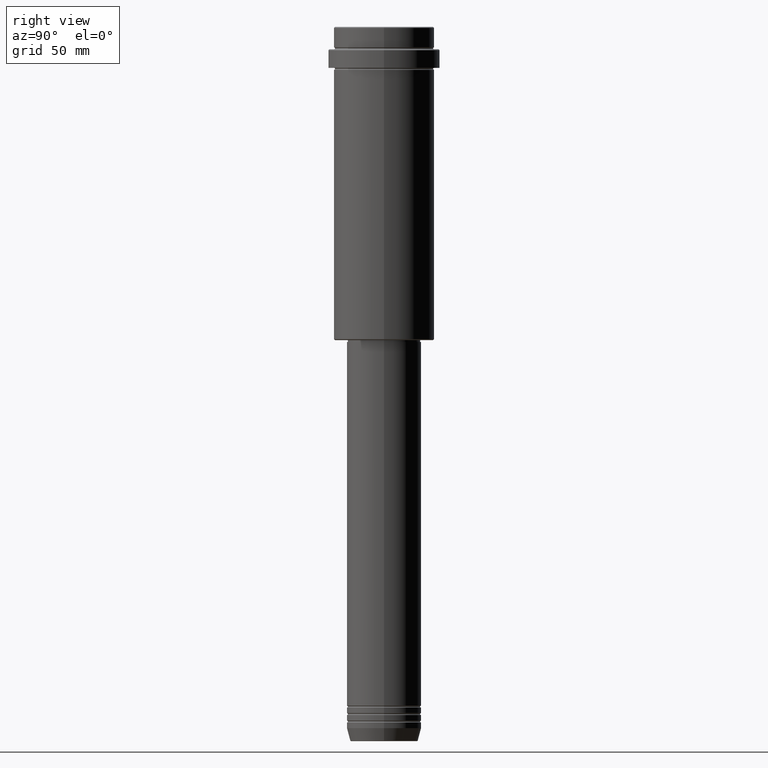
[diagram: clean part render]
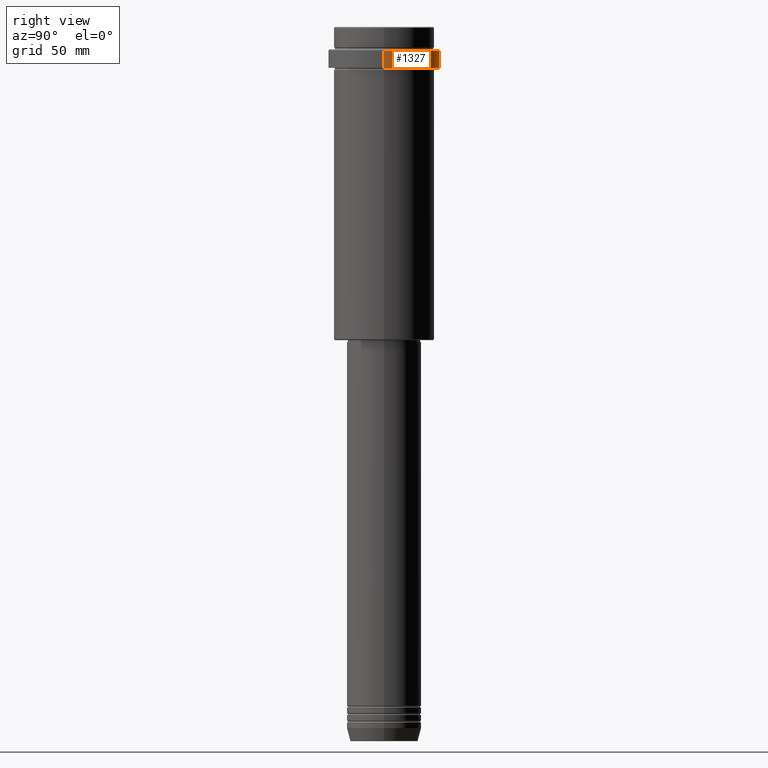
[diagram: same view with one face highlighted and labeled with its STEP entity id]
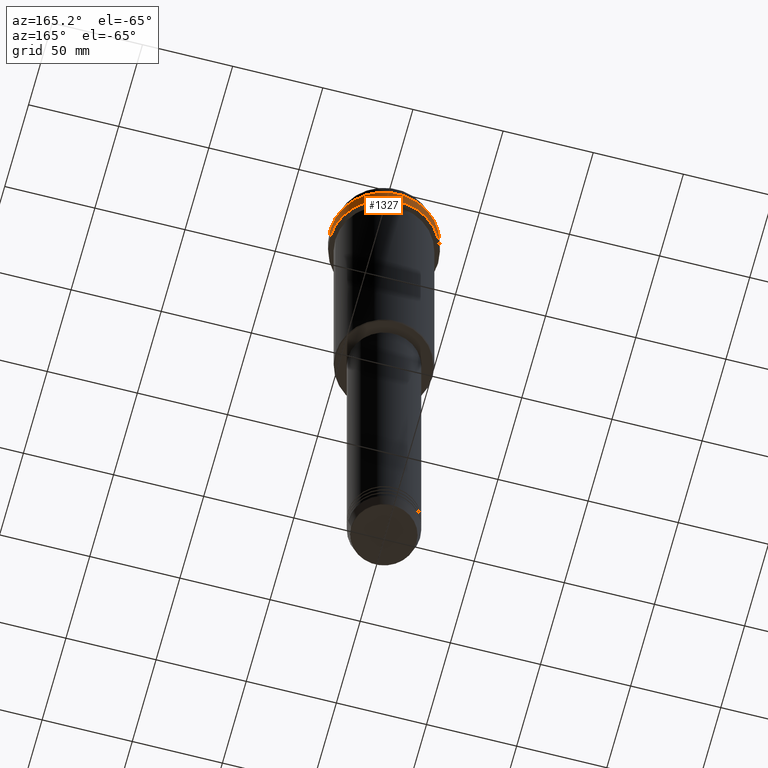
[diagram: same view with one face highlighted and labeled with its STEP entity id]
A machine part, right view. The second image highlights one B-rep face of the part: STEP entity #1327.
A second angle (auxiliary view) of the same face is appended — the face is thin or edge-on in the first view.
In plain terms, the highlighted cylindrical surface (partial cylindrical patch) has radius 30 mm, axis along (-0, -0, 1).
Its self-contained STEP definition (entity closure, byte-faithful):
#56 = ORIENTED_EDGE ( 'NONE', *, *, #1051, .T. ) ;
#64 = CIRCLE ( 'NONE', #1237, 30.00000000000000000 ) ;
#72 = VERTEX_POINT ( 'NONE', #919 ) ;
#102 = CARTESIAN_POINT ( 'NONE',  ( 0.000000000000000000, 0.000000000000000000, 0.000000000000000000 ) ) ;
#140 = DIRECTION ( 'NONE',  ( 1.000000000000000000, 0.000000000000000000, 0.000000000000000000 ) ) ;
#165 = CARTESIAN_POINT ( 'NONE',  ( 30.00000000000000000, 0.000000000000000000, -12.50000000000006573 ) ) ;
#173 = DIRECTION ( 'NONE',  ( -0.000000000000000000, -0.000000000000000000, 1.000000000000000000 ) ) ;
#199 = LINE ( 'NONE', #400, #462 ) ;
#233 = EDGE_CURVE ( 'NONE', #585, #739, #199, .T. ) ;
#234 = DIRECTION ( 'NONE',  ( -0.000000000000000000, -0.000000000000000000, 1.000000000000000000 ) ) ;
#322 = CARTESIAN_POINT ( 'NONE',  ( -29.99999999999999645, 3.673940397442058389E-15, -22.00000000000000355 ) ) ;
#331 = ORIENTED_EDGE ( 'NONE', *, *, #233, .F. ) ;
#400 = CARTESIAN_POINT ( 'NONE',  ( 30.00000000000000000, 0.000000000000000000, 0.000000000000000000 ) ) ;
#418 = ORIENTED_EDGE ( 'NONE', *, *, #788, .T. ) ;
#462 = VECTOR ( 'NONE', #173, 1000.000000000000000 ) ;
#524 = ORIENTED_EDGE ( 'NONE', *, *, #1352, .T. ) ;
#539 = CARTESIAN_POINT ( 'NONE',  ( 0.000000000000000000, 0.000000000000000000, -12.50000000000006573 ) ) ;
#585 = VERTEX_POINT ( 'NONE', #1139 ) ;
#601 = DIRECTION ( 'NONE',  ( -0.000000000000000000, -0.000000000000000000, 1.000000000000000000 ) ) ;
#610 = LINE ( 'NONE', #956, #1234 ) ;
#739 = VERTEX_POINT ( 'NONE', #165 ) ;
#783 = CARTESIAN_POINT ( 'NONE',  ( 0.000000000000000000, 0.000000000000000000, -22.00000000000000355 ) ) ;
#788 = EDGE_CURVE ( 'NONE', #1328, #72, #610, .T. ) ;
#802 = AXIS2_PLACEMENT_3D ( 'NONE', #102, #234, #1288 ) ;
#873 = DIRECTION ( 'NONE',  ( 1.000000000000000000, 0.000000000000000000, 0.000000000000000000 ) ) ;
#919 = CARTESIAN_POINT ( 'NONE',  ( -30.00000000000000000, 3.673940397442059178E-15, -12.50000000000006573 ) ) ;
#956 = CARTESIAN_POINT ( 'NONE',  ( -30.00000000000000000, 3.673940397442059178E-15, 0.000000000000000000 ) ) ;
#1051 = EDGE_CURVE ( 'NONE', #585, #1328, #1168, .T. ) ;
#1085 = FACE_OUTER_BOUND ( 'NONE', #1387, .T. ) ;
#1139 = CARTESIAN_POINT ( 'NONE',  ( 29.99999999999999645, 0.000000000000000000, -22.00000000000000355 ) ) ;
#1168 = CIRCLE ( 'NONE', #1316, 29.99999999999999645 ) ;
#1234 = VECTOR ( 'NONE', #1270, 1000.000000000000000 ) ;
#1237 = AXIS2_PLACEMENT_3D ( 'NONE', #539, #1394, #873 ) ;
#1270 = DIRECTION ( 'NONE',  ( -0.000000000000000000, -0.000000000000000000, 1.000000000000000000 ) ) ;
#1288 = DIRECTION ( 'NONE',  ( 1.000000000000000000, 0.000000000000000000, 0.000000000000000000 ) ) ;
#1295 = CYLINDRICAL_SURFACE ( 'NONE', #802, 30.00000000000000000 ) ;
#1316 = AXIS2_PLACEMENT_3D ( 'NONE', #783, #601, #140 ) ;
#1327 = ADVANCED_FACE ( 'NONE', ( #1085 ), #1295, .T. ) ;
#1328 = VERTEX_POINT ( 'NONE', #322 ) ;
#1352 = EDGE_CURVE ( 'NONE', #72, #739, #64, .T. ) ;
#1387 = EDGE_LOOP ( 'NONE', ( #56, #418, #524, #331 ) ) ;
#1394 = DIRECTION ( 'NONE',  ( 0.000000000000000000, 0.000000000000000000, -1.000000000000000000 ) ) ;